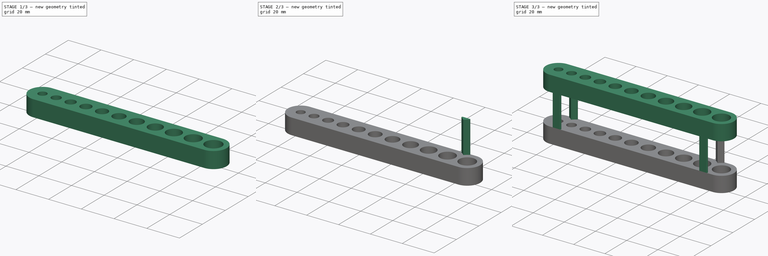
[diagram: build sequence overview — one tinted view per stage of 3, left to right]
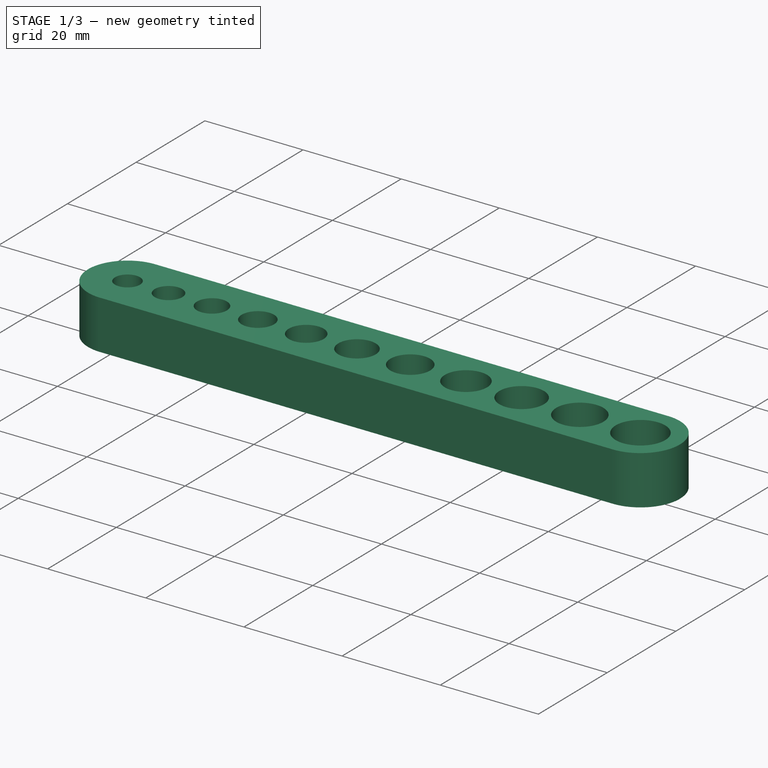
[diagram: stage 1 of 3 — iso view after this stage's code; geometry added in this stage tinted green]
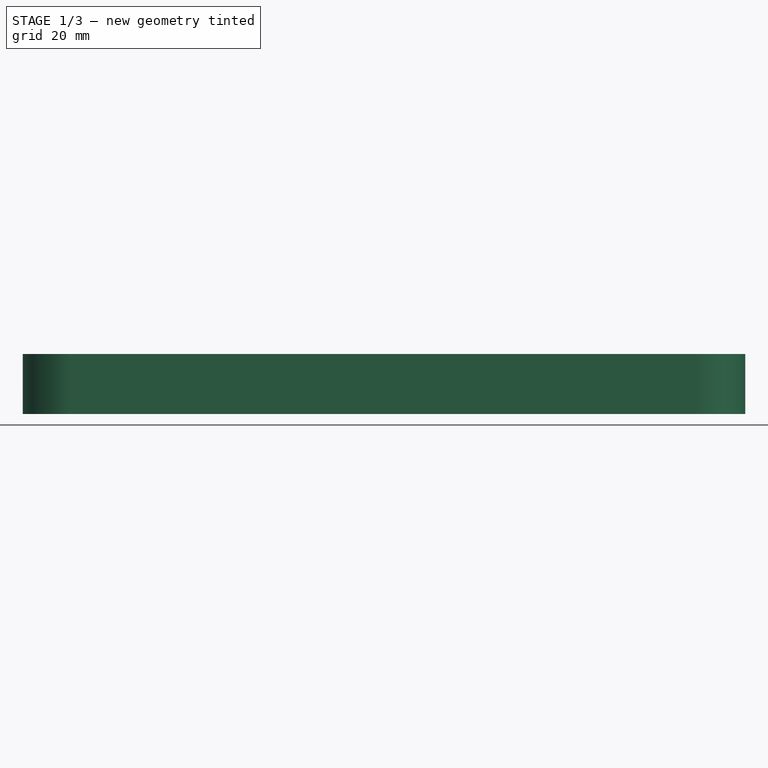
[diagram: stage 1 of 3 — front view after this stage's code; geometry added in this stage tinted green]
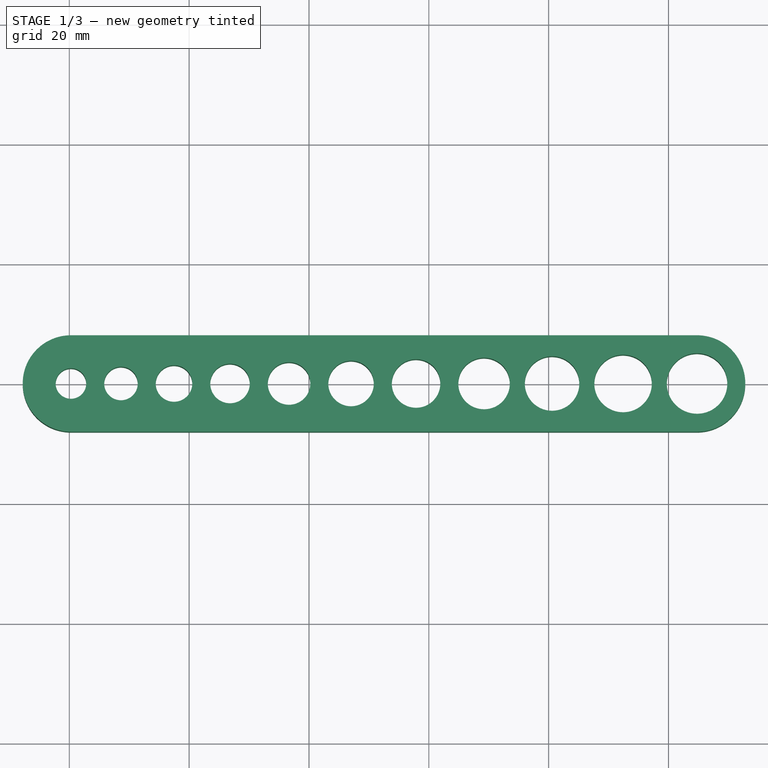
[diagram: stage 1 of 3 — top view after this stage's code; geometry added in this stage tinted green]
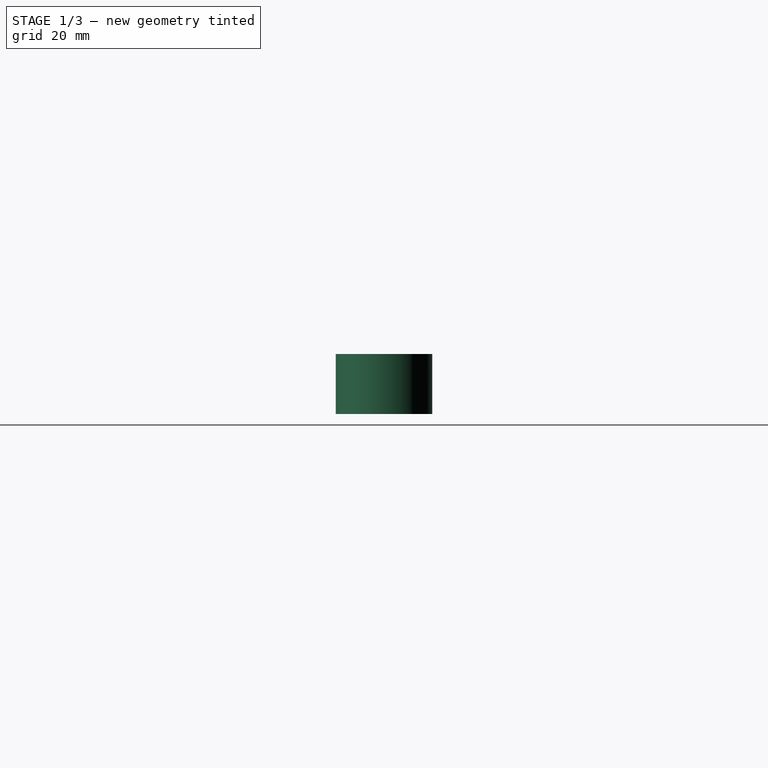
[diagram: stage 1 of 3 — right view after this stage's code; geometry added in this stage tinted green]
FCSTD DOCUMENT  (FreeCAD 0.18.4R)
Label: Unnamed3
License: All rights reserved
LicenseURL: http://en.wikipedia.org/wiki/All_rights_reserved
objects: Sketcher::SketchObject×4, PartDesign::Pad×2, PartDesign::Body×2, Spreadsheet::Sheet×1, PartDesign::Mirrored×1, PartDesign::LinearPattern×1, PartDesign::MultiTransform×1, PartDesign::FeatureBase×1, PartDesign::Boolean×1, PartDesign::Plane×1
note: 16 computed .brp shape members not serialized (recipe doc carries the construction recipe); baked Part::Feature solids carry a one-line shape summary decoded from their .brp

FEATURE [Sketcher::SketchObject] Sketch
  MapMode = 5
  Support = -> [XY_Plane]
  expr: Constraints[7] = (<<d>>.r3 + <<d>>.r2) / 2 + <<d>>.d
  expr: Constraints[13] = <<d>>.r6
  expr: Constraints[8] = <<d>>.r1
  expr: Constraints[16] = (<<d>>.r5 + <<d>>.r6) / 2 + <<d>>.d
  expr: Constraints[27] = (<<d>>.r7 + <<d>>.r8) / 2 + <<d>>.d
  expr: Constraints[9] = <<d>>.r2
  expr: Constraints[41] = <<d>>.r11 + 6
  expr: Constraints[14] = (<<d>>.r3 + <<d>>.r4) / 2 + <<d>>.d
  expr: Constraints[10] = <<d>>.r3
  expr: Constraints[11] = <<d>>.r4
  expr: Constraints[6] = (<<d>>.r1 + <<d>>.r2) / 2 + <<d>>.d
  expr: Constraints[12] = <<d>>.r5
  expr: Constraints[15] = (<<d>>.r5 + <<d>>.r4) / 2 + <<d>>.d
  expr: Constraints[18] = <<d>>.r7
  expr: Constraints[23] = <<d>>.r9
  expr: Constraints[24] = <<d>>.r8
  expr: Constraints[25] = (<<d>>.r7 + <<d>>.r6) / 2 + <<d>>.d
  expr: Constraints[28] = (<<d>>.r8 + <<d>>.r9) / 2 + <<d>>.d
  expr: Constraints[30] = <<d>>.r10
  expr: Constraints[31] = <<d>>.r11
  expr: Constraints[26] = (<<d>>.r7 + <<d>>.r8) / 2 + <<d>>.d
  expr: Constraints[29] = (<<d>>.r10 + <<d>>.r9) / 2 + <<d>>.d
  constraints (44):
    c: PointOnObject(g0,g-1)
    c: PointOnObject(g1,g-1)
    c: PointOnObject(g2,g-1)
    c: PointOnObject(g3,g-1)
    c: PointOnObject(g4,g-1)
    c: PointOnObject(g5,g-1)
    c: Distance(g0,g1) = 8.35
    c: Distance(g1,g2) = 8.85
    c: Diameter(g0) = 5.1
    c: Diameter(g1) = 5.6
    c: Diameter(g2) = 6.1
    c: Diameter(g3) = 6.6
    c: Diameter(g4) = 7.1
    c: Diameter(g5) = 7.6
    c: Distance(g3,g2) = 9.35
    c: Distance(g3,g4) = 9.85
    c: Distance(g4,g5) = 10.35
    c: PointOnObject(g6,g-1)
    c: Diameter(g6) = 8.1
    c: PointOnObject(g7,g-1)
    c: PointOnObject(g8,g-1)
    c: PointOnObject(g9,g-1)
    c: PointOnObject(g10,g-1)
    c: Diameter(g7) = 9.1
    c: Diameter(g8) = 8.6
    c: Distance(g6,g5) = 10.85
    c: Distance(g6,g8) = 11.35
    c: Distance(g8,g7) = 11.35
    c: Distance(g7,g9) = 11.85
    c: Distance(g9,g10) = 12.35
    c: Diameter(g9) = 9.6
    c: Diameter(g10) = 10.1
    c: Coincident(g11,g10)
    c: Coincident(g12,g0)
    c: Equal(g11,g12)
    c: Coincident(g13,g12)
    c: Coincident(g13,g11)
    c: Horizontal(g13)
    c: Coincident(g14,g12)
    c: Coincident(g14,g11)
    c: Horizontal(g14)
    c: Diameter(g11) = 16.1
    c: Tangent(g11,g13)
    c: Tangent(g11,g14)
FEATURE [Spreadsheet::Sheet] Spreadsheet  label="d"
  cells = A1=r1; B1(r1)=5.1; C1=d; D1(d)=3; A2=r2; B2(r2)=5.6; A3=r3; B3(r3)=6.1; A4=r4; B4(r4)=6.6; A5=r5; B5(r5)=7.1; A6=r6; B6(r6)=7.6; A7=r7; B7(r7)=8.1; A8=r8; B8(r8)=8.6; A9=r9; B9(r9)=9.1; A10=r10; B10(r10)=9.6; A11=r11; B11(r11)=10.1
FEATURE [PartDesign::Pad] Pad
  Length = 10
  Length2 = 100
  Profile = -> Sketch
  Refine = true
  Type = 0
FEATURE [PartDesign::FeatureBase] Clone
  BaseFeature = -> Pad
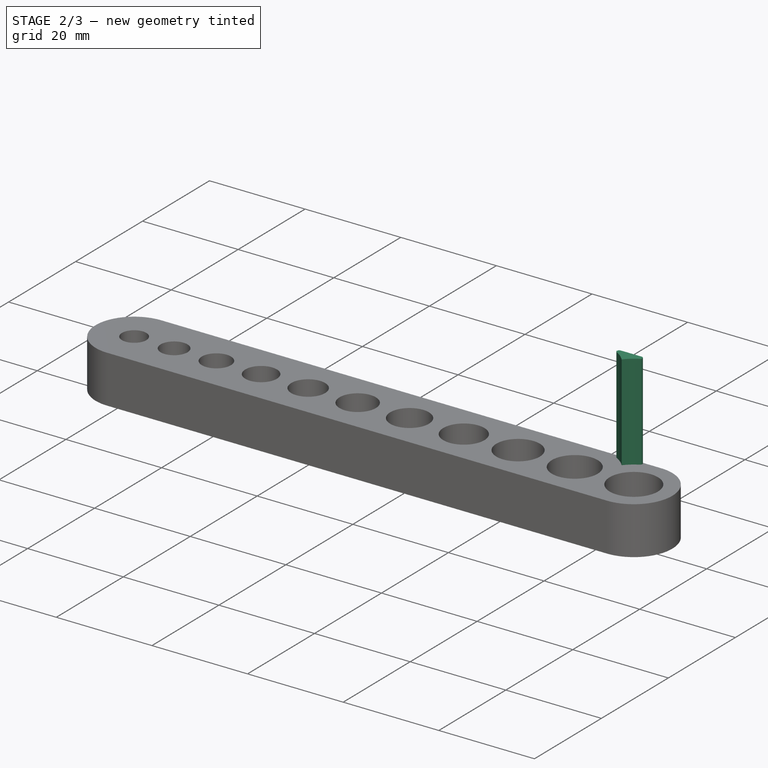
[diagram: stage 2 of 3 — iso view after this stage's code; geometry added in this stage tinted green]
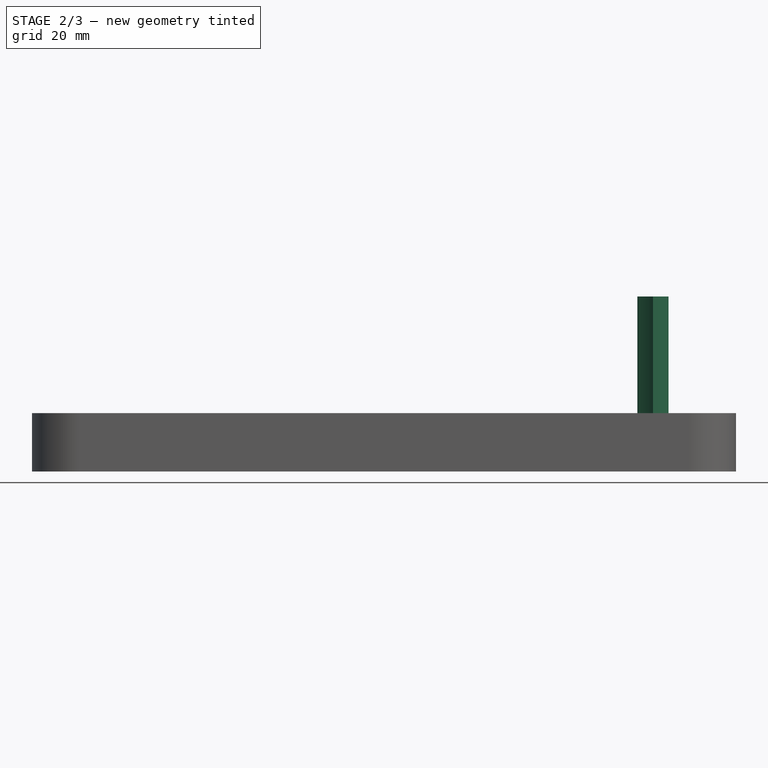
[diagram: stage 2 of 3 — front view after this stage's code; geometry added in this stage tinted green]
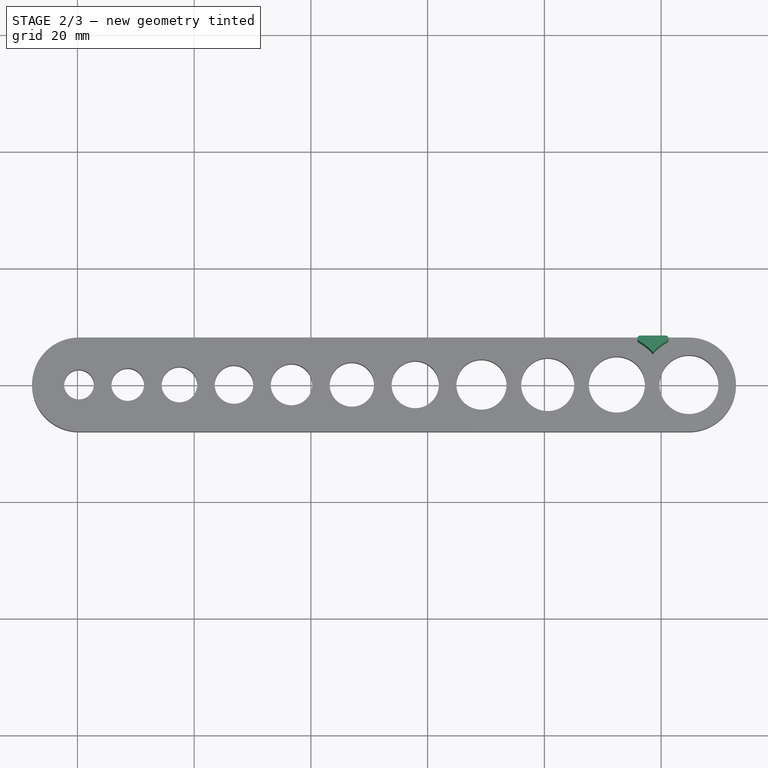
[diagram: stage 2 of 3 — top view after this stage's code; geometry added in this stage tinted green]
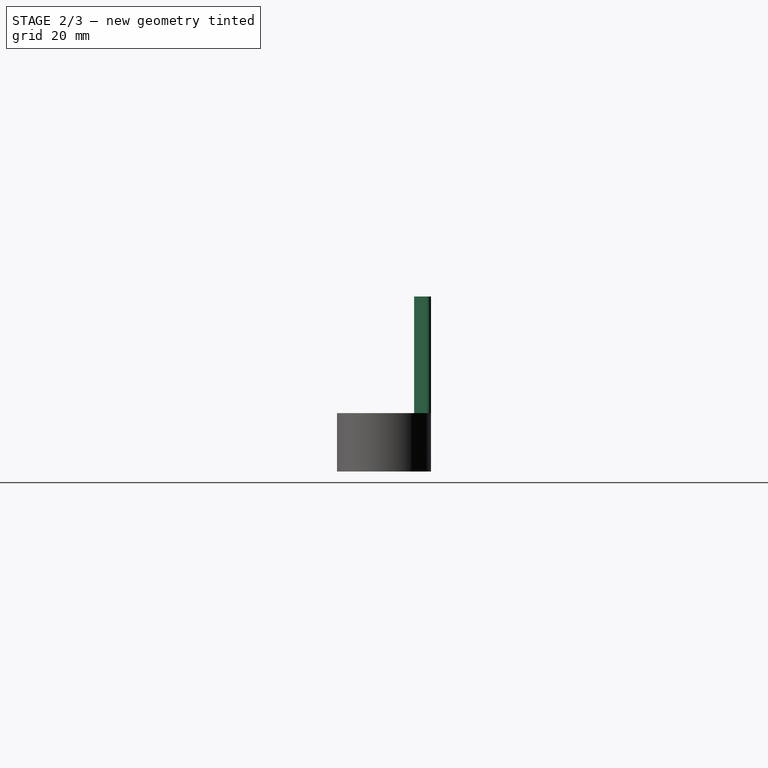
[diagram: stage 2 of 3 — right view after this stage's code; geometry added in this stage tinted green]
FEATURE [Sketcher::SketchObject] Sketch001
  ExternalGeometry = -> [Pad]
  MapMode = 5
  Placement = pos=(0,0,10) rot=(0,0,1;0rad)
  Support = -> [Pad]
  constraints (13):
    c: Coincident(g0,g-4)
    c: Horizontal(g1)
    c: Coincident(g2,g-5)
    c: Coincident(g2,g0)
    c: Equal(g0,g2)
    c: Tangent(g2,g3) = 1.5708
    c: Tangent(g1,g3) = -1.5708
    c: Diameter(g3) = 1
    c: Equal(g0,g-4)
    c: Tangent(g0,g4) = 1.5708
    c: Tangent(g1,g4) = -1.5708
    c: Diameter(g4) = 1
    c: PointOnObject(g1,g-6)
FEATURE [PartDesign::Pad] Pad001
  BaseFeature = -> Pad
  Length = 20
  Length2 = 100
  Profile = -> Sketch001
  Refine = true
  Type = 0
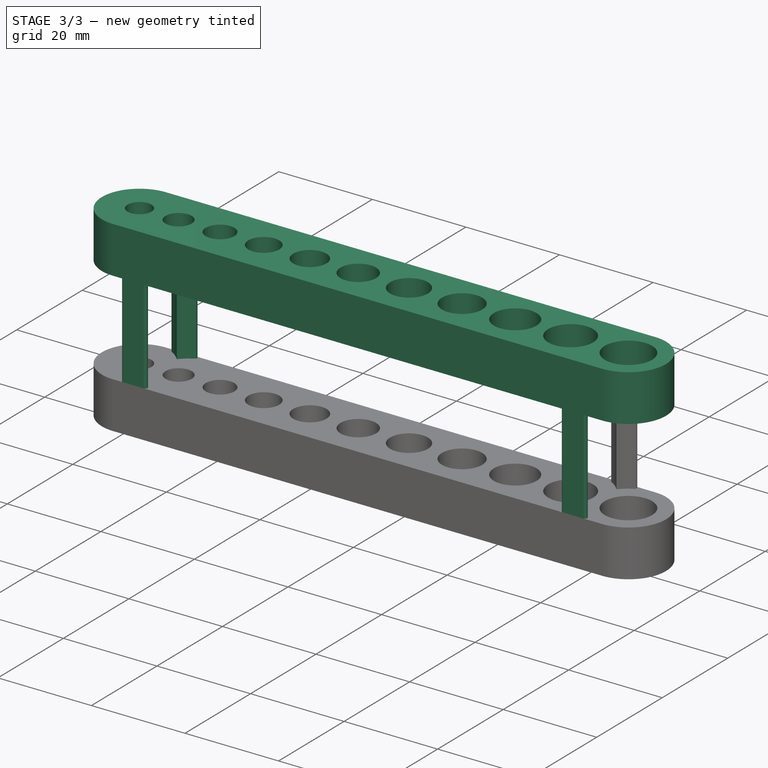
[diagram: stage 3 of 3 — iso view after this stage's code; geometry added in this stage tinted green]
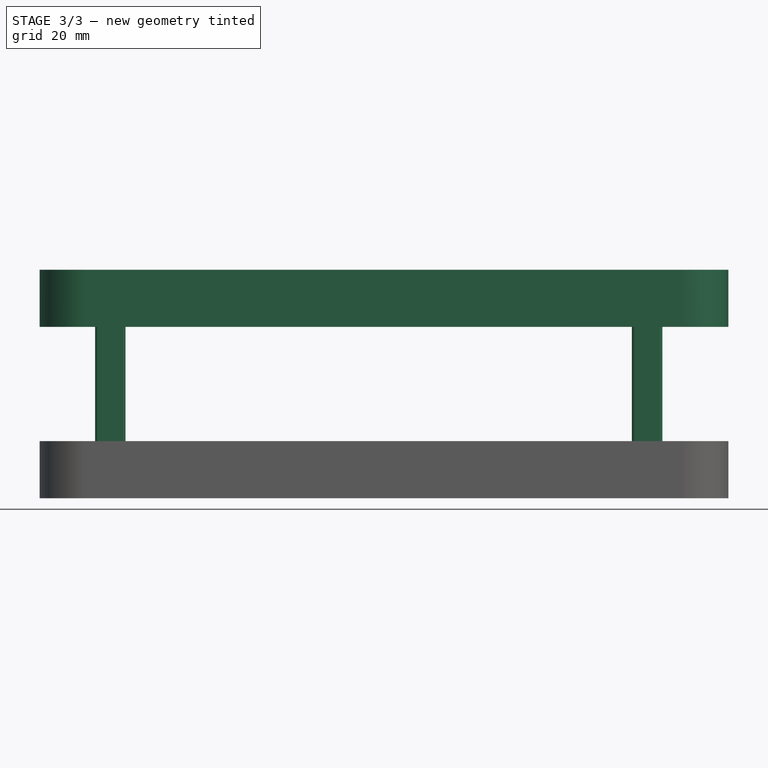
[diagram: stage 3 of 3 — front view after this stage's code; geometry added in this stage tinted green]
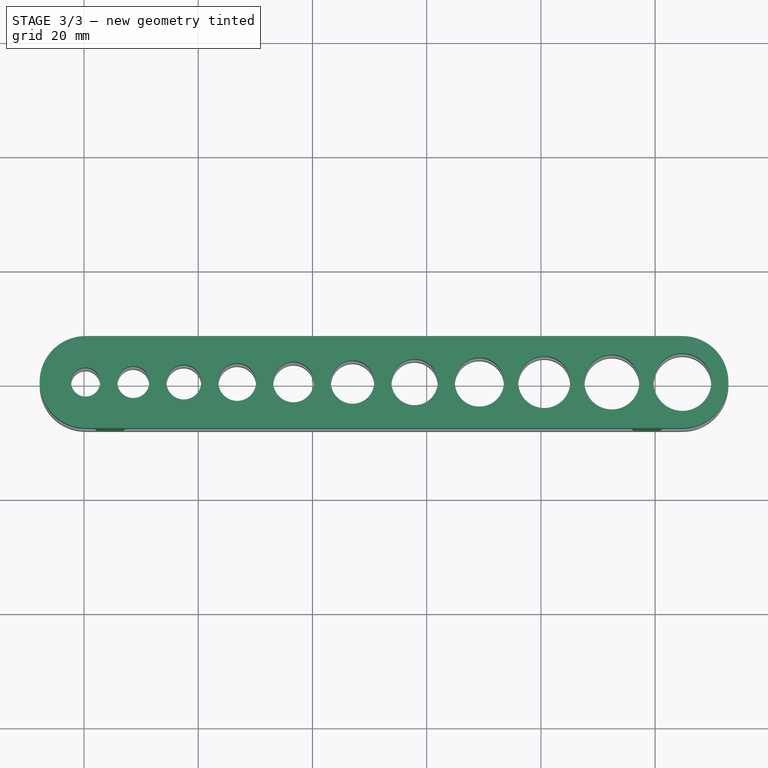
[diagram: stage 3 of 3 — top view after this stage's code; geometry added in this stage tinted green]
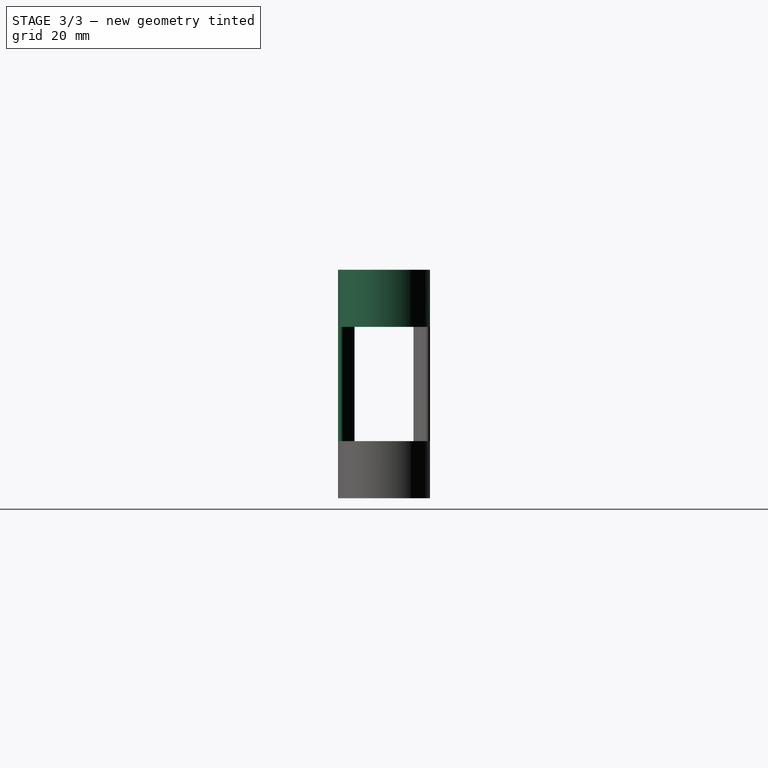
[diagram: stage 3 of 3 — right view after this stage's code; geometry added in this stage tinted green]
FEATURE [PartDesign::Mirrored] Mirrored
  MirrorPlane = -> Sketch001 [H_Axis]
  Refine = true
FEATURE [PartDesign::LinearPattern] LinearPattern
  Direction = -> Sketch001 [H_Axis]
  Length = 94
  Occurrences = 2
  Refine = true
  Reversed = true
FEATURE [PartDesign::MultiTransform] MultiTransform
  BaseFeature = -> Pad001
  Originals = -> [Pad001]
  Refine = true
  Transformations = -> [Mirrored,LinearPattern]
FEATURE [PartDesign::Body] Body001
  BaseFeature = -> Pad
  Group = -> [Clone]
  Origin = -> Origin001
  Placement = pos=(0,0,30) rot=(0,0,1;0rad)
  Tip = -> Clone
FEATURE [PartDesign::Boolean] Boolean
  BaseFeature = -> MultiTransform
  Group = -> [Body001]
  Refine = true
  Type = 0
FEATURE [PartDesign::Plane] DatumPlane
  AttachmentOffset = pos=(0,0,10) rot=(0,0,1;0rad)
  Length = 130.3
  MapMode = 5
  Placement = pos=(0,0,20) rot=(1,0,0;3.14159rad)
  ResizeMode = 0
  Support = -> [Boolean]
  Width = 29.8176
FEATURE [Sketcher::SketchObject] Sketch002  label="Sketch003"
  ExternalGeometry = -> [Boolean]
  MapMode = 5
  Placement = pos=(0,0,30) rot=(1,0,0;3.14159rad)
  Support = -> [Boolean]
  sketch-geometry (2):
    g0: ArcOfCircle CenterX=32.4219 CenterY=0 CenterZ=0 NormalX=0 NormalY=0 NormalZ=1 AngleXU=0 Radius=8.05 StartAngle=5.20088 EndAngle=5.58667
    g1: ArcOfCircle CenterX=44.7719 CenterY=0 CenterZ=0 NormalX=0 NormalY=0 NormalZ=1 AngleXU=0 Radius=8.05 StartAngle=3.83811 EndAngle=4.2239
  constraints (2):
    c: PointOnObject(g1,g-1)
    c: Coincident(g1,g0)
FEATURE [Sketcher::SketchObject] Sketch003  label="Unnamed"
FEATURE [PartDesign::Body] Body
  Group = -> [Sketch,Pad,Sketch001,Pad001,MultiTransform,Mirrored,LinearPattern,Boolean,DatumPlane,Sketch002,Sketch003]
  Origin = -> Origin
  Tip = -> Boolean
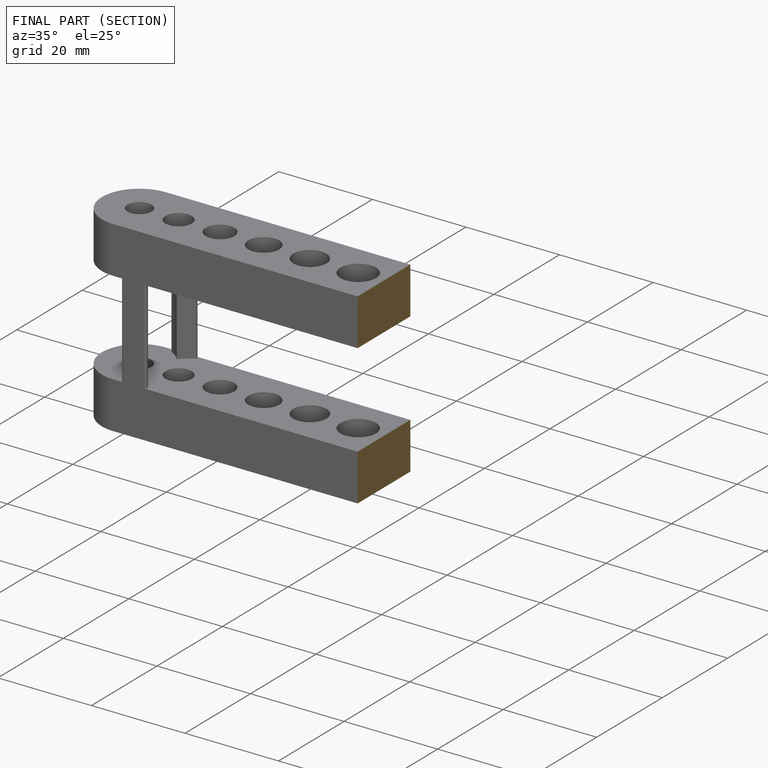
[diagram: finished part — half-section view (interior)]
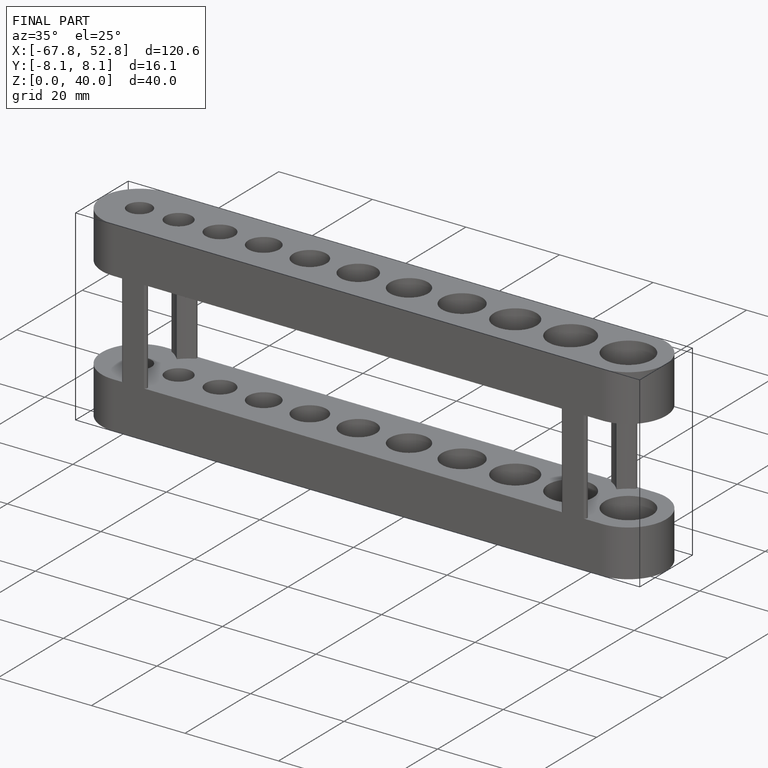
[diagram: finished part — iso view with bounding-box wireframe]
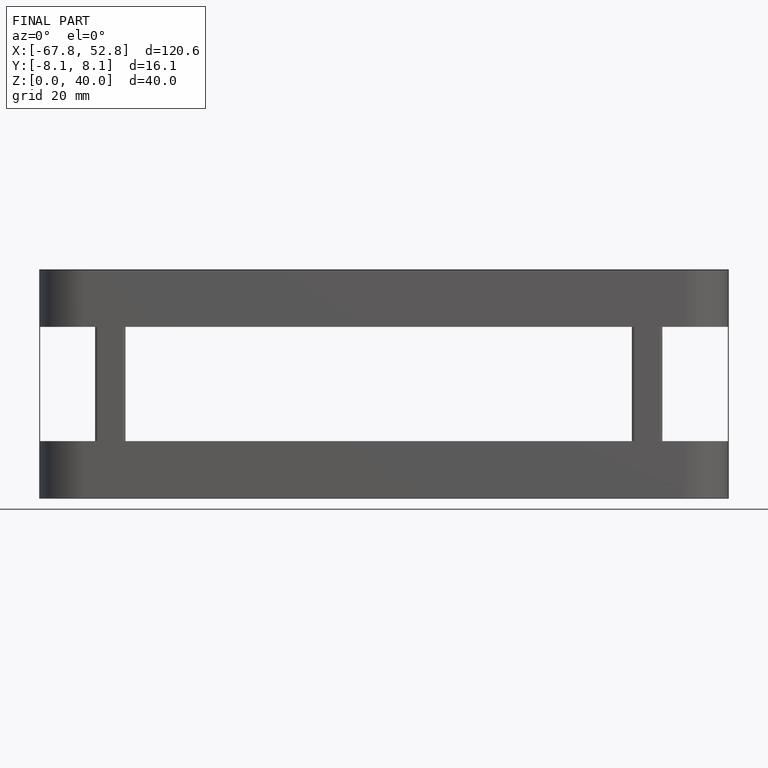
[diagram: finished part — front view with bounding-box wireframe]
